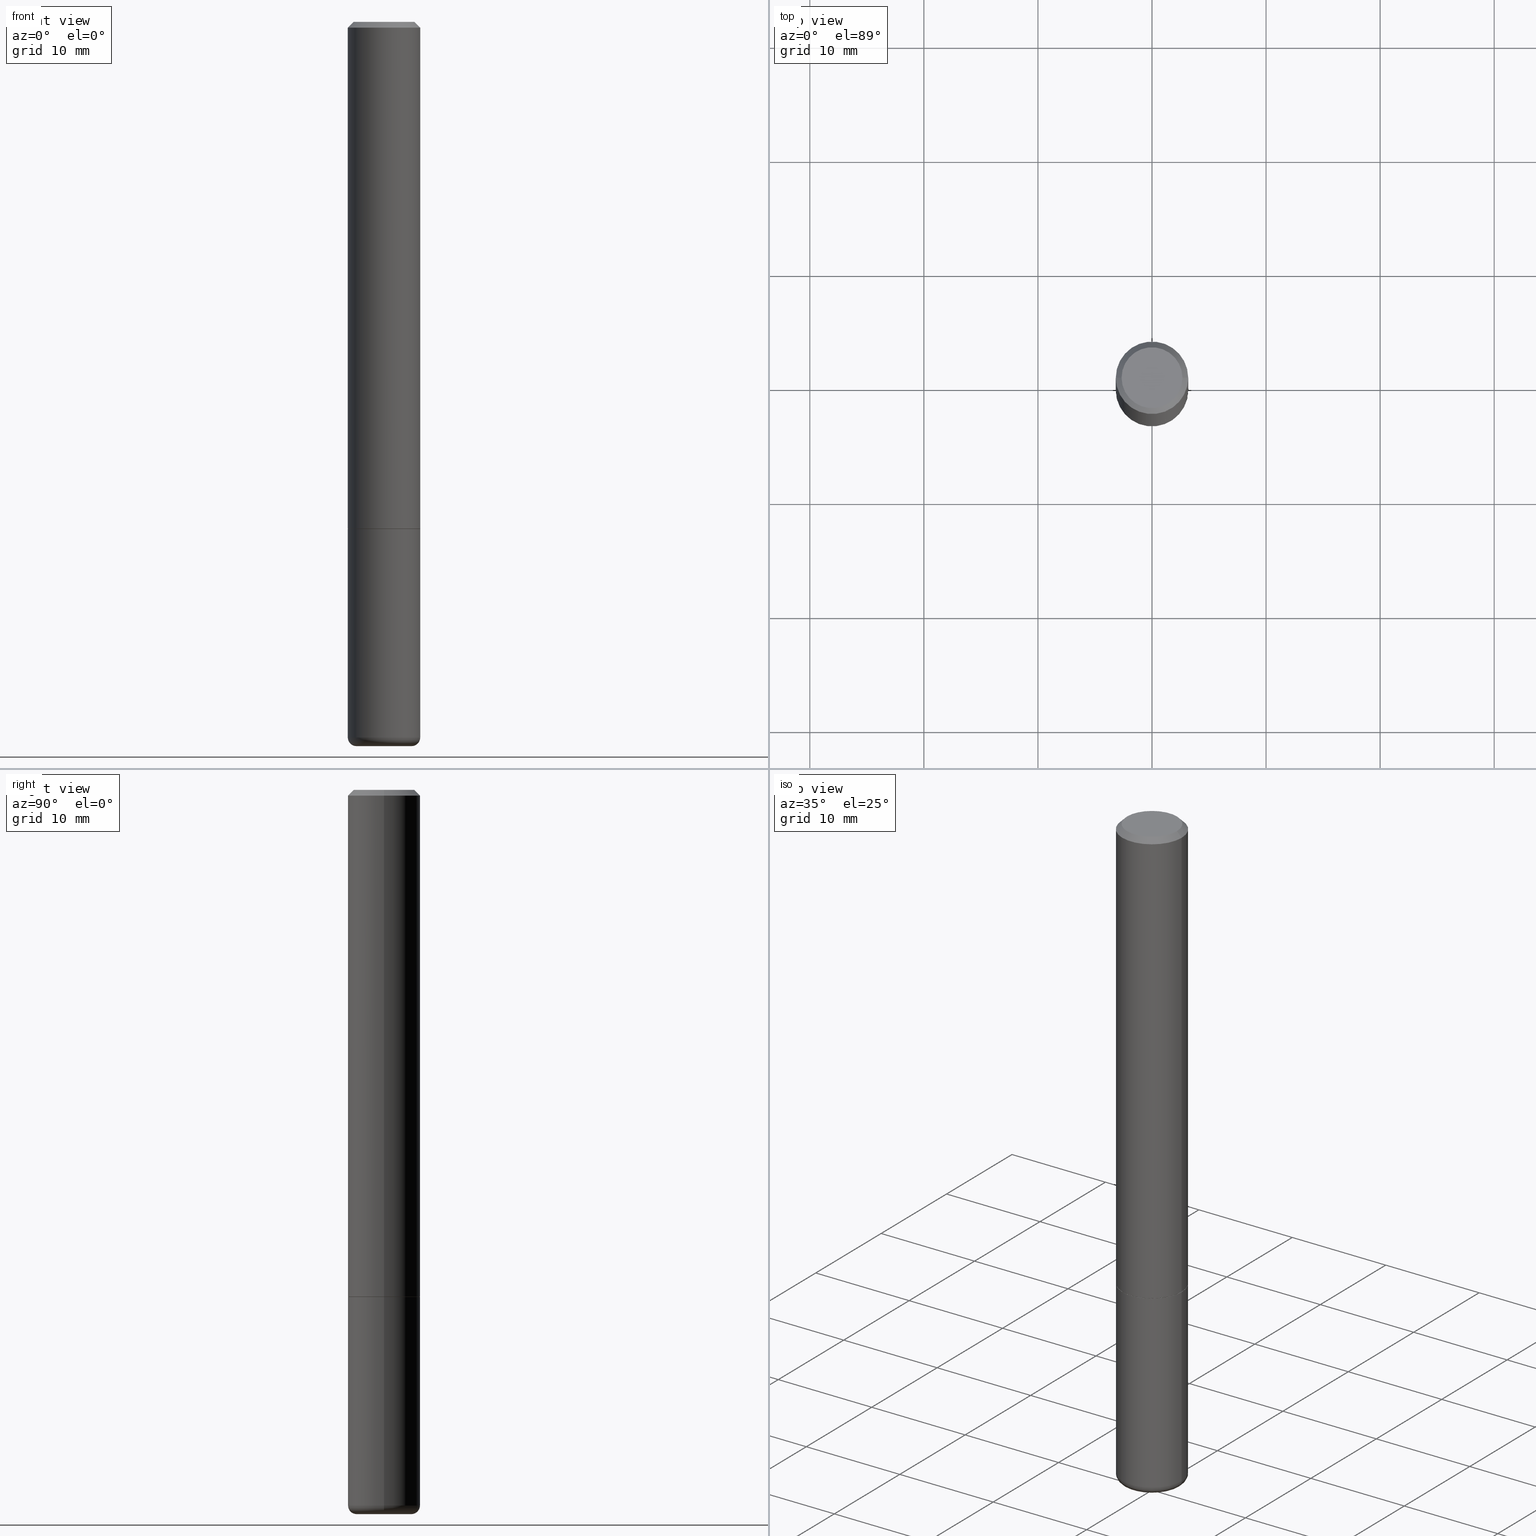
[diagram: canonical four-view strip — front | top / right | iso, engineering-drawing reading convention]
A machine part, canonical four-view strip (front | top / right | iso — engineering-drawing reading convention). The complete STEP part file that produces these views, byte-faithful:
ISO-10303-21;
HEADER;
FILE_DESCRIPTION (( 'STEP AP203' ),
    '1' );
FILE_NAME ('77123.STEP',
    '2024-03-06T16:04:13',
    ( '' ),
    ( '' ),
    'SwSTEP 2.0',
    'SolidWorks 2023',
    '' );
FILE_SCHEMA (( 'CONFIG_CONTROL_DESIGN' ));
ENDSEC;

DATA;
#1 = EDGE_CURVE ( 'NONE', #315, #45, #4, .T. ) ;
#2 = CARTESIAN_POINT ( 'NONE',  ( 4.279570410823989044E-29, -6.110092342975505460E-15, -1.750000000000000222 ) ) ;
#3 = FACE_OUTER_BOUND ( 'NONE', #313, .T. ) ;
#4 = CIRCLE ( 'NONE', #129, 0.1250000000000000000 ) ;
#5 = EDGE_CURVE ( 'NONE', #107, #174, #170, .T. ) ;
#6 = DIRECTION ( 'NONE',  ( -2.445468806185136597E-29, 3.491481338843145583E-15, 1.000000000000000000 ) ) ;
#7 = COORDINATED_UNIVERSAL_TIME_OFFSET ( 5, 0, .BEHIND. ) ;
#8 = LINE ( 'NONE', #35, #156 ) ;
#9 = DIRECTION ( 'NONE',  ( 1.000000000000000000, -6.982962677686267499E-15, 4.876176775795936353E-29 ) ) ;
#10 = CARTESIAN_POINT ( 'NONE',  ( -0.1249999999999999584, 8.030407079339200406E-16, -0.02000000000000006287 ) ) ;
#11 = CLOSED_SHELL ( 'NONE', ( #326, #207, #175, #405, #395, #160 ) ) ;
#12 = CIRCLE ( 'NONE', #255, 0.1250000000000001943 ) ;
#13 = DIRECTION ( 'NONE',  ( 2.438088387897960049E-29, -3.491481338843145188E-15, -1.000000000000000000 ) ) ;
#14 = CARTESIAN_POINT ( 'NONE',  ( 6.040307951277287977E-29, -8.623958906942569995E-15, -2.470000000000000195 ) ) ;
#15 = CARTESIAN_POINT ( 'NONE',  ( 1.252621697202263706E-45, -1.788411804456536750E-31, -5.122214988120493535E-17 ) ) ;
#16 = CARTESIAN_POINT ( 'NONE',  ( 4.279570410823989044E-29, -6.110092342975505460E-15, -1.750000000000000222 ) ) ;
#17 = DIRECTION ( 'NONE',  ( -2.445468806185136597E-29, 3.491481338843145583E-15, 1.000000000000000000 ) ) ;
#18 = EDGE_CURVE ( 'NONE', #108, #75, #74, .T. ) ;
#19 = ORIENTED_EDGE ( 'NONE', *, *, #380, .T. ) ;
#20 = ORIENTED_EDGE ( 'NONE', *, *, #55, .F. ) ;
#21 = DATE_AND_TIME ( #73, #287 ) ;
#22 = EDGE_LOOP ( 'NONE', ( #80, #275, #367, #375 ) ) ;
#23 = CARTESIAN_POINT ( 'NONE',  ( -0.1250000000000000000, -6.478847205258913284E-15, -1.750000000000000222 ) ) ;
#24 = EDGE_LOOP ( 'NONE', ( #366, #342, #114, #339 ) ) ;
#25 = ADVANCED_FACE ( 'NONE', ( #140 ), #168, .T. ) ;
#26 = CIRCLE ( 'NONE', #231, 0.02999999999999997113 ) ;
#27 = CIRCLE ( 'NONE', #344, 0.1050000000000000377 ) ;
#28 = PLANE ( 'NONE',  #273 ) ;
#29 = LINE ( 'NONE', #354, #200 ) ;
#30 = PERSON_AND_ORGANIZATION ( #100, #418 ) ;
#31 = CIRCLE ( 'NONE', #155, 0.1239999999999999991 ) ;
#32 = DATE_AND_TIME ( #289, #296 ) ;
#33 = APPROVAL_ROLE ( '' ) ;
#34 = AXIS2_PLACEMENT_3D ( 'NONE', #14, #105, #401 ) ;
#35 = CARTESIAN_POINT ( 'NONE',  ( 0.1249999999999999584, -9.273918764983043491E-16, -0.02000000000000006287 ) ) ;
#36 = FACE_OUTER_BOUND ( 'NONE', #24, .T. ) ;
#37 = APPROVAL_ROLE ( '' ) ;
#38 = AXIS2_PLACEMENT_3D ( 'NONE', #270, #307, #402 ) ;
#39 = DIRECTION ( 'NONE',  ( 1.000000000000000000, -6.982962677686262766E-15, 0.000000000000000000 ) ) ;
#40 = AXIS2_PLACEMENT_3D ( 'NONE', #281, #118, #248 ) ;
#41 = FACE_OUTER_BOUND ( 'NONE', #243, .T. ) ;
#42 = DIRECTION ( 'NONE',  ( -2.445468806185136597E-29, 3.491481338843145583E-15, 1.000000000000000000 ) ) ;
#43 = EDGE_LOOP ( 'NONE', ( #173, #146, #317, #372 ) ) ;
#44 = VERTEX_POINT ( 'NONE', #269 ) ;
#45 = VERTEX_POINT ( 'NONE', #23 ) ;
#46 = DATE_AND_TIME ( #83, #240 ) ;
#47 = VERTEX_POINT ( 'NONE', #202 ) ;
#48 = FACE_OUTER_BOUND ( 'NONE', #332, .T. ) ;
#49 = CIRCLE ( 'NONE', #364, 0.1250000000000000000 ) ;
#50 = SECURITY_CLASSIFICATION ( '', '', #136 ) ;
#51 = ORIENTED_EDGE ( 'NONE', *, *, #133, .F. ) ;
#52 = EDGE_LOOP ( 'NONE', ( #148, #271, #242, #397 ) ) ;
#53 = DIRECTION ( 'NONE',  ( 2.445468806185136597E-29, -3.491481338843145583E-15, -1.000000000000000000 ) ) ;
#54 = DIRECTION ( 'NONE',  ( -2.445468806185136597E-29, 3.491481338843145583E-15, 1.000000000000000000 ) ) ;
#55 = EDGE_CURVE ( 'NONE', #44, #107, #31, .T. ) ;
#56 = EDGE_LOOP ( 'NONE', ( #84, #51 ) ) ;
#57 = LINE ( 'NONE', #211, #413 ) ;
#58 = AXIS2_PLACEMENT_3D ( 'NONE', #226, #64, #195 ) ;
#59 = APPROVAL_PERSON_ORGANIZATION ( #125, #117, #370 ) ;
#60 = EDGE_CURVE ( 'NONE', #174, #368, #29, .T. ) ;
#61 = DIRECTION ( 'NONE',  ( 1.000000000000000000, -6.982962677686262766E-15, 0.000000000000000000 ) ) ;
#62 = CC_DESIGN_PERSON_AND_ORGANIZATION_ASSIGNMENT ( #293, #191, ( #119 ) ) ;
#63 = AXIS2_PLACEMENT_3D ( 'NONE', #16, #171, #272 ) ;
#64 = DIRECTION ( 'NONE',  ( -2.445468806185136597E-29, 3.491481338843145583E-15, 1.000000000000000000 ) ) ;
#65 = PERSON_AND_ORGANIZATION ( #100, #418 ) ;
#66 = LINE ( 'NONE', #162, #106 ) ;
#67 = DIRECTION ( 'NONE',  ( -2.445468806185136597E-29, 3.491481338843145583E-15, 1.000000000000000000 ) ) ;
#68 = AXIS2_PLACEMENT_3D ( 'NONE', #347, #54, #180 ) ;
#69 = CONICAL_SURFACE ( 'NONE', #193, 0.1249999999999999584, 0.7853981633974460586 ) ;
#70 = DIRECTION ( 'NONE',  ( -2.445468806185136597E-29, 3.491481338843145583E-15, 1.000000000000000000 ) ) ;
#71 = DIRECTION ( 'NONE',  ( 1.000000000000000000, -6.982962677686267499E-15, 0.000000000000000000 ) ) ;
#72 = CARTESIAN_POINT ( 'NONE',  ( 6.040307951277287977E-29, -8.623958906942569995E-15, -2.470000000000000195 ) ) ;
#73 = CALENDAR_DATE ( 2024, 6, 3 ) ;
#74 = CIRCLE ( 'NONE', #34, 0.1250000000000000000 ) ;
#75 = VERTEX_POINT ( 'NONE', #378 ) ;
#76 = VERTEX_POINT ( 'NONE', #221 ) ;
#77 = AXIS2_PLACEMENT_3D ( 'NONE', #294, #233, #71 ) ;
#78 = CYLINDRICAL_SURFACE ( 'NONE', #260, 0.1250000000000000555 ) ;
#79 = ADVANCED_FACE ( 'NONE', ( #323 ), #28, .F. ) ;
#80 = ORIENTED_EDGE ( 'NONE', *, *, #308, .F. ) ;
#81 = DIRECTION ( 'NONE',  ( 1.000000000000000000, -6.982962677686267499E-15, 0.000000000000000000 ) ) ;
#82 = CC_DESIGN_PERSON_AND_ORGANIZATION_ASSIGNMENT ( #230, #324, ( #337 ) ) ;
#83 = CALENDAR_DATE ( 2024, 6, 3 ) ;
#84 = ORIENTED_EDGE ( 'NONE', *, *, #241, .F. ) ;
#85 = CARTESIAN_POINT ( 'NONE',  ( 4.890937612370288923E-31, -6.982962677686312563E-17, -0.02000000000000006287 ) ) ;
#86 =( NAMED_UNIT ( * ) PLANE_ANGLE_UNIT ( ) SI_UNIT ( $, .RADIAN. ) );
#87 = DIRECTION ( 'NONE',  ( -2.445468806185136597E-29, 3.491481338843145583E-15, 1.000000000000000000 ) ) ;
#88 = ORIENTED_EDGE ( 'NONE', *, *, #215, .T. ) ;
#89 = AXIS2_PLACEMENT_3D ( 'NONE', #217, #95, #283 ) ;
#90 =( NAMED_UNIT ( * ) SI_UNIT ( $, .STERADIAN. ) SOLID_ANGLE_UNIT ( ) );
#91 = CC_DESIGN_DATE_AND_TIME_ASSIGNMENT ( #186, #183, ( #50 ) ) ;
#92 = PRODUCT_DEFINITION_SHAPE ( 'NONE', 'NONE',  #337 ) ;
#93 = DIRECTION ( 'NONE',  ( -2.438088387897960049E-29, 3.491481338843145188E-15, 1.000000000000000000 ) ) ;
#94 = AXIS2_PLACEMENT_3D ( 'NONE', #336, #361, #363 ) ;
#95 = DIRECTION ( 'NONE',  ( 7.105427357601001859E-15, 1.000000000000000000, -3.491481338843145583E-15 ) ) ;
#96 = AXIS2_PLACEMENT_3D ( 'NONE', #141, #178, #306 ) ;
#97 = DIRECTION ( 'NONE',  ( 0.7071067811865459074, -7.319954787623249734E-15, -0.7071067811865491270 ) ) ;
#98 = FACE_OUTER_BOUND ( 'NONE', #279, .T. ) ;
#99 = DIRECTION ( 'NONE',  ( 1.000000000000000000, -6.982962677686273021E-15, 0.000000000000000000 ) ) ;
#100 = PERSON ( 'UNSPECIFIED', 'UNSPECIFIED', 'UNSPECIFIED', ('UNSPECIFIED'), ('UNSPECIFIED'), ('UNSPECIFIED') ) ;
#101 = APPROVAL_PERSON_ORGANIZATION ( #194, #158, #33 ) ;
#102 = FACE_OUTER_BOUND ( 'NONE', #144, .T. ) ;
#103 = VERTEX_POINT ( 'NONE', #188 ) ;
#104 = DIRECTION ( 'NONE',  ( 1.000000000000000000, -6.982962677686266711E-15, 4.876176775795935793E-29 ) ) ;
#105 = DIRECTION ( 'NONE',  ( -2.445468806185136597E-29, 3.491481338843145583E-15, 1.000000000000000000 ) ) ;
#106 = VECTOR ( 'NONE', #223, 39.37007874015748143 ) ;
#107 = VERTEX_POINT ( 'NONE', #154 ) ;
#108 = VERTEX_POINT ( 'NONE', #383 ) ;
#109 = CC_DESIGN_APPROVAL ( #117, ( #50 ) ) ;
#110 = FACE_OUTER_BOUND ( 'NONE', #305, .T. ) ;
#111 = APPLICATION_CONTEXT ( 'configuration controlled 3d designs of mechanical parts and assemblies' ) ;
#112 = ORIENTED_EDGE ( 'NONE', *, *, #124, .F. ) ;
#113 = ORIENTED_EDGE ( 'NONE', *, *, #314, .F. ) ;
#114 = ORIENTED_EDGE ( 'NONE', *, *, #1, .F. ) ;
#115 = DIRECTION ( 'NONE',  ( 1.000000000000000000, -6.982962677686267499E-15, 4.874400871621236533E-29 ) ) ;
#116 = EDGE_CURVE ( 'NONE', #362, #108, #267, .T. ) ;
#117 = APPROVAL ( #147, 'UNSPECIFIED' ) ;
#118 = DIRECTION ( 'NONE',  ( 0.000000000000000000, 0.000000000000000000, 1.000000000000000000 ) ) ;
#119 = PRODUCT ( '77123', '77123', '', ( #245 ) ) ;
#120 = ORIENTED_EDGE ( 'NONE', *, *, #384, .T. ) ;
#121 = CARTESIAN_POINT ( 'NONE',  ( -0.1249999999999999584, 8.030407079339200406E-16, -0.02000000000000006287 ) ) ;
#122 = DIRECTION ( 'NONE',  ( -2.445468806185136597E-29, 3.491481338843145583E-15, 1.000000000000000000 ) ) ;
#123 = LINE ( 'NONE', #320, #161 ) ;
#124 = EDGE_CURVE ( 'NONE', #47, #75, #26, .T. ) ;
#125 = PERSON_AND_ORGANIZATION ( #100, #418 ) ;
#126 = CONICAL_SURFACE ( 'NONE', #359, 0.1239999999999999991, 0.7853981633976446775 ) ;
#127 = DIRECTION ( 'NONE',  ( -2.445468806185136597E-29, 3.491481338843145583E-15, 1.000000000000000000 ) ) ;
#128 = COORDINATED_UNIVERSAL_TIME_OFFSET ( 5, 0, .BEHIND. ) ;
#129 = AXIS2_PLACEMENT_3D ( 'NONE', #199, #17, #39 ) ;
#130 = CC_DESIGN_SECURITY_CLASSIFICATION ( #50, ( #355 ) ) ;
#131 = DIRECTION ( 'NONE',  ( 1.000000000000000000, -6.982962677686267499E-15, 4.874400871621236533E-29 ) ) ;
#132 = CALENDAR_DATE ( 2024, 6, 3 ) ;
#133 = EDGE_CURVE ( 'NONE', #362, #47, #238, .T. ) ;
#134 = DIRECTION ( 'NONE',  ( -0.7071067811865459074, 2.468850131082240100E-15, -0.7071067811865491270 ) ) ;
#135 = AXIS2_PLACEMENT_3D ( 'NONE', #85, #177, #236 ) ;
#136 = SECURITY_CLASSIFICATION_LEVEL ( 'unclassified' ) ;
#137 = ORIENTED_EDGE ( 'NONE', *, *, #227, .F. ) ;
#138 = FACE_OUTER_BOUND ( 'NONE', #251, .T. ) ;
#139 = ORIENTED_EDGE ( 'NONE', *, *, #60, .F. ) ;
#140 = FACE_OUTER_BOUND ( 'NONE', #22, .T. ) ;
#141 = CARTESIAN_POINT ( 'NONE',  ( 6.040307951277287977E-29, -8.623958906942569995E-15, -2.470000000000000195 ) ) ;
#142 = PLANE ( 'NONE',  #224 ) ;
#143 = ORIENTED_EDGE ( 'NONE', *, *, #190, .F. ) ;
#144 = EDGE_LOOP ( 'NONE', ( #398, #235, #113, #201 ) ) ;
#145 = PLANE ( 'NONE',  #38 ) ;
#146 = ORIENTED_EDGE ( 'NONE', *, *, #308, .T. ) ;
#147 = APPROVAL_STATUS ( 'not_yet_approved' ) ;
#148 = ORIENTED_EDGE ( 'NONE', *, *, #5, .F. ) ;
#149 = DIRECTION ( 'NONE',  ( -1.000000000000000000, 6.982962677686267499E-15, 0.000000000000000000 ) ) ;
#150 = CLOSED_SHELL ( 'NONE', ( #153, #416, #343, #25, #356, #285, #79, #222 ) ) ;
#151 = APPROVAL_PERSON_ORGANIZATION ( #159, #286, #37 ) ;
#152 = DIRECTION ( 'NONE',  ( -2.445468806185136597E-29, 3.491481338843145583E-15, 1.000000000000000000 ) ) ;
#153 = ADVANCED_FACE ( 'NONE', ( #102 ), #391, .T. ) ;
#154 = CARTESIAN_POINT ( 'NONE',  ( -0.1239999999999999991, -5.223720896284758045E-15, -1.750000000000000000 ) ) ;
#155 = AXIS2_PLACEMENT_3D ( 'NONE', #319, #122, #414 ) ;
#156 = VECTOR ( 'NONE', #97, 39.37007874015748143 ) ;
#157 = EDGE_CURVE ( 'NONE', #45, #315, #412, .T. ) ;
#158 = APPROVAL ( #298, 'UNSPECIFIED' ) ;
#159 = PERSON_AND_ORGANIZATION ( #100, #418 ) ;
#160 = ADVANCED_FACE ( 'NONE', ( #167 ), #142, .T. ) ;
#162 = CARTESIAN_POINT ( 'NONE',  ( 0.1250000000000000000, -8.728703347107833388E-16, 6.095220969744919741E-30 ) ) ;
#161 = VECTOR ( 'NONE', #379, 39.37007874015748143 ) ;
#163 = CC_DESIGN_PERSON_AND_ORGANIZATION_ASSIGNMENT ( #321, #348, ( #50 ) ) ;
#164 = DIRECTION ( 'NONE',  ( -2.445468806185136597E-29, 3.491481338843145583E-15, 1.000000000000000000 ) ) ;
#165 = DIRECTION ( 'NONE',  ( -2.445468806185136597E-29, 3.491481338843145583E-15, 1.000000000000000000 ) ) ;
#166 = CARTESIAN_POINT ( 'NONE',  ( 4.279570410823988484E-29, -6.110092342975504671E-15, -1.750000000000000000 ) ) ;
#167 = FACE_OUTER_BOUND ( 'NONE', #56, .T. ) ;
#168 = CONICAL_SURFACE ( 'NONE', #135, 0.1249999999999999584, 0.7853981633974460586 ) ;
#169 = CIRCLE ( 'NONE', #77, 0.1250000000000001943 ) ;
#170 = LINE ( 'NONE', #280, #386 ) ;
#171 = DIRECTION ( 'NONE',  ( -2.445468806185136597E-29, 3.491481338843145583E-15, 1.000000000000000000 ) ) ;
#172 = ORIENTED_EDGE ( 'NONE', *, *, #116, .F. ) ;
#173 = ORIENTED_EDGE ( 'NONE', *, *, #299, .F. ) ;
#174 = VERTEX_POINT ( 'NONE', #237 ) ;
#175 = ADVANCED_FACE ( 'NONE', ( #138 ), #145, .F. ) ;
#176 = TOROIDAL_SURFACE ( 'NONE', #96, 0.09499999999999998723, 0.02999999999999997807 ) ;
#177 = DIRECTION ( 'NONE',  ( 2.445468806185136597E-29, -3.491481338843145583E-15, -1.000000000000000000 ) ) ;
#178 = DIRECTION ( 'NONE',  ( -2.445468806185136597E-29, 3.491481338843145583E-15, 1.000000000000000000 ) ) ;
#179 = VERTEX_POINT ( 'NONE', #390 ) ;
#180 = DIRECTION ( 'NONE',  ( 1.000000000000000000, -6.982962677686267499E-15, 0.000000000000000000 ) ) ;
#181 = DIRECTION ( 'NONE',  ( 2.438088387897960049E-29, -3.491481338843145188E-15, -1.000000000000000000 ) ) ;
#182 = DIRECTION ( 'NONE',  ( 0.7071067811866863506, -2.468850131083710931E-15, 0.7071067811864086838 ) ) ;
#183 = DATE_TIME_ROLE ( 'classification_date' ) ;
#184 = CARTESIAN_POINT ( 'NONE',  ( 4.277124942017804562E-29, -6.106600861636661664E-15, -1.749000000000000110 ) ) ;
#185 = TOROIDAL_SURFACE ( 'NONE', #58, 0.09499999999999998723, 0.02999999999999997807 ) ;
#186 = DATE_AND_TIME ( #216, #311 ) ;
#187 = DIRECTION ( 'NONE',  ( -1.000000000000000000, 6.982962677686265922E-15, -4.876176775795935793E-29 ) ) ;
#188 = CARTESIAN_POINT ( 'NONE',  ( 0.1250000000000001943, -6.979471196347446580E-15, -1.749000000000000110 ) ) ;
#189 = DIRECTION ( 'NONE',  ( -2.445468806185136877E-29, 3.491481338843145188E-15, 1.000000000000000000 ) ) ;
#190 = EDGE_CURVE ( 'NONE', #75, #108, #49, .T. ) ;
#191 = PERSON_AND_ORGANIZATION_ROLE ( 'design_owner' ) ;
#192 = CIRCLE ( 'NONE', #295, 0.1239999999999999991 ) ;
#193 = AXIS2_PLACEMENT_3D ( 'NONE', #376, #53, #149 ) ;
#194 = PERSON_AND_ORGANIZATION ( #100, #418 ) ;
#195 = DIRECTION ( 'NONE',  ( 1.000000000000000000, -6.982962677686273021E-15, 4.883557194083114583E-29 ) ) ;
#196 = EDGE_CURVE ( 'NONE', #76, #368, #301, .T. ) ;
#197 = CIRCLE ( 'NONE', #68, 0.1249999999999999584 ) ;
#198 = CARTESIAN_POINT ( 'NONE',  ( 0.000000000000000000, 0.000000000000000000, 0.000000000000000000 ) ) ;
#199 = CARTESIAN_POINT ( 'NONE',  ( 4.279570410823989044E-29, -6.110092342975505460E-15, -1.750000000000000222 ) ) ;
#200 = VECTOR ( 'NONE', #189, 39.37007874015748143 ) ;
#201 = ORIENTED_EDGE ( 'NONE', *, *, #334, .F. ) ;
#202 = CARTESIAN_POINT ( 'NONE',  ( 0.09499999999999998723, -9.392084801488059965E-15, -2.500000000000000000 ) ) ;
#203 = ORIENTED_EDGE ( 'NONE', *, *, #314, .T. ) ;
#204 = EDGE_LOOP ( 'NONE', ( #20, #137 ) ) ;
#205 = CYLINDRICAL_SURFACE ( 'NONE', #404, 0.1250000000000000000 ) ;
#206 = CARTESIAN_POINT ( 'NONE',  ( 6.113672015462842613E-29, -8.728703347107864943E-15, -2.500000000000000000 ) ) ;
#207 = ADVANCED_FACE ( 'NONE', ( #3 ), #185, .T. ) ;
#208 = ORIENTED_EDGE ( 'NONE', *, *, #299, .T. ) ;
#209 =( CONVERSION_BASED_UNIT ( 'INCH', #219 ) LENGTH_UNIT ( ) NAMED_UNIT ( #292 ) );
#210 = VECTOR ( 'NONE', #388, 39.37007874015748143 ) ;
#211 = CARTESIAN_POINT ( 'NONE',  ( 0.1239999999999999991, -6.975979715008601207E-15, -1.750000000000000000 ) ) ;
#212 = DIRECTION ( 'NONE',  ( 1.000000000000000000, -6.982962677686267499E-15, 0.000000000000000000 ) ) ;
#213 = MANIFOLD_SOLID_BREP ( 'Body-Move/Copy2[1]', #11 ) ;
#214 = APPROVAL_DATE_TIME ( #21, #286 ) ;
#215 = EDGE_CURVE ( 'NONE', #103, #179, #327, .T. ) ;
#216 = CALENDAR_DATE ( 2024, 6, 3 ) ;
#217 = CARTESIAN_POINT ( 'NONE',  ( -0.09499999999999998723, -7.948943307970475008E-15, -2.470000000000000195 ) ) ;
#218 = CYLINDRICAL_SURFACE ( 'NONE', #250, 0.1250000000000000555 ) ;
#219 = LENGTH_MEASURE_WITH_UNIT ( LENGTH_MEASURE( 0.02539999999999999897 ), #302 );
#220 = DIRECTION ( 'NONE',  ( 1.000000000000000000, -6.982962677686265922E-15, 4.876176775795935793E-29 ) ) ;
#221 = CARTESIAN_POINT ( 'NONE',  ( -0.1050000000000000377, 7.681258945454890818E-16, -5.122214988121018004E-17 ) ) ;
#222 = ADVANCED_FACE ( 'NONE', ( #98 ), #229, .F. ) ;
#223 = DIRECTION ( 'NONE',  ( -2.445468806185136877E-29, 3.491481338843145188E-15, 1.000000000000000000 ) ) ;
#224 = AXIS2_PLACEMENT_3D ( 'NONE', #309, #13, #399 ) ;
#225 = AXIS2_PLACEMENT_3D ( 'NONE', #385, #87, #104 ) ;
#226 = CARTESIAN_POINT ( 'NONE',  ( 6.040307951277287977E-29, -8.623958906942569995E-15, -2.470000000000000195 ) ) ;
#227 = EDGE_CURVE ( 'NONE', #107, #44, #192, .T. ) ;
#228 = DIRECTION ( 'NONE',  ( -6.982962677686266711E-15, -1.000000000000000000, 3.491481338843145583E-15 ) ) ;
#229 = PLANE ( 'NONE',  #328 ) ;
#230 = PERSON_AND_ORGANIZATION ( #100, #418 ) ;
#231 = AXIS2_PLACEMENT_3D ( 'NONE', #263, #228, #338 ) ;
#232 = CC_DESIGN_APPROVAL ( #158, ( #337 ) ) ;
#233 = DIRECTION ( 'NONE',  ( -2.445468806185136597E-29, 3.491481338843145583E-15, 1.000000000000000000 ) ) ;
#234 = EDGE_CURVE ( 'NONE', #75, #315, #66, .T. ) ;
#235 = ORIENTED_EDGE ( 'NONE', *, *, #5, .T. ) ;
#236 = DIRECTION ( 'NONE',  ( -1.000000000000000000, 6.982962677686267499E-15, 0.000000000000000000 ) ) ;
#237 = CARTESIAN_POINT ( 'NONE',  ( -0.1250000000000001943, -2.200036824506633304E-15, -1.749000000000000110 ) ) ;
#238 = CIRCLE ( 'NONE', #374, 0.09499999999999998723 ) ;
#239 = COORDINATED_UNIVERSAL_TIME_OFFSET ( 5, 0, .BEHIND. ) ;
#240 = LOCAL_TIME ( 11, 4, 13.00000000000000000, #253 ) ;
#241 = EDGE_CURVE ( 'NONE', #47, #362, #249, .T. ) ;
#242 = ORIENTED_EDGE ( 'NONE', *, *, #334, .T. ) ;
#243 = EDGE_LOOP ( 'NONE', ( #203, #400, #340, #365 ) ) ;
#244 = ORIENTED_EDGE ( 'NONE', *, *, #133, .T. ) ;
#245 = MECHANICAL_CONTEXT ( 'NONE', #381, 'mechanical' ) ;
#246 = ORIENTED_EDGE ( 'NONE', *, *, #18, .F. ) ;
#247 = ORIENTED_EDGE ( 'NONE', *, *, #157, .F. ) ;
#248 = DIRECTION ( 'NONE',  ( 1.000000000000000000, 0.000000000000000000, 0.000000000000000000 ) ) ;
#249 = CIRCLE ( 'NONE', #352, 0.09499999999999998723 ) ;
#250 = AXIS2_PLACEMENT_3D ( 'NONE', #346, #288, #415 ) ;
#251 = EDGE_LOOP ( 'NONE', ( #407, #408 ) ) ;
#252 = PRODUCT_RELATED_PRODUCT_CATEGORY ( 'detail', '', ( #119 ) ) ;
#253 = COORDINATED_UNIVERSAL_TIME_OFFSET ( 5, 0, .BEHIND. ) ;
#254 = EDGE_CURVE ( 'NONE', #179, #368, #403, .T. ) ;
#255 = AXIS2_PLACEMENT_3D ( 'NONE', #184, #152, #81 ) ;
#256 = CC_DESIGN_PERSON_AND_ORGANIZATION_ASSIGNMENT ( #65, #303, ( #355 ) ) ;
#257 = DATE_TIME_ROLE ( 'creation_date' ) ;
#258 = CYLINDRICAL_SURFACE ( 'NONE', #225, 0.1250000000000000000 ) ;
#259 = CARTESIAN_POINT ( 'NONE',  ( 0.1250000000000000555, -8.728703347107838319E-16, 6.095220969744923244E-30 ) ) ;
#260 = AXIS2_PLACEMENT_3D ( 'NONE', #198, #165, #9 ) ;
#261 = DATE_AND_TIME ( #132, #392 ) ;
#262 = PERSON_AND_ORGANIZATION_ROLE ( 'creator' ) ;
#263 = CARTESIAN_POINT ( 'NONE',  ( 0.09499999999999998723, -9.287340361322766595E-15, -2.470000000000000195 ) ) ;
#264 = EDGE_CURVE ( 'NONE', #368, #179, #197, .T. ) ;
#265 = DIRECTION ( 'NONE',  ( 1.000000000000000000, -6.982962677686262766E-15, 0.000000000000000000 ) ) ;
#266 = DIRECTION ( 'NONE',  ( 1.000000000000000000, -6.982962677686270655E-15, 0.000000000000000000 ) ) ;
#267 = CIRCLE ( 'NONE', #89, 0.02999999999999997113 ) ;
#268 = ORIENTED_EDGE ( 'NONE', *, *, #124, .T. ) ;
#269 = CARTESIAN_POINT ( 'NONE',  ( 0.1239999999999999991, -6.975979715008601207E-15, -1.750000000000000000 ) ) ;
#270 = CARTESIAN_POINT ( 'NONE',  ( 4.279570410823989044E-29, -6.110092342975505460E-15, -1.750000000000000222 ) ) ;
#271 = ORIENTED_EDGE ( 'NONE', *, *, #227, .T. ) ;
#272 = DIRECTION ( 'NONE',  ( 1.000000000000000000, -6.982962677686262766E-15, 0.000000000000000000 ) ) ;
#273 = AXIS2_PLACEMENT_3D ( 'NONE', #2, #93, #220 ) ;
#274 =( GEOMETRIC_REPRESENTATION_CONTEXT ( 3 ) GLOBAL_UNCERTAINTY_ASSIGNED_CONTEXT ( ( #329 ) ) GLOBAL_UNIT_ASSIGNED_CONTEXT ( ( #209, #86, #90 ) ) REPRESENTATION_CONTEXT ( 'NONE', 'WORKASPACE' ) );
#275 = ORIENTED_EDGE ( 'NONE', *, *, #384, .F. ) ;
#276 = ORIENTED_EDGE ( 'NONE', *, *, #241, .T. ) ;
#277 = ADVANCED_BREP_SHAPE_REPRESENTATION ( '77123', ( #213, #358, #40 ), #274 ) ;
#278 = SHAPE_DEFINITION_REPRESENTATION ( #92, #277 ) ;
#279 = EDGE_LOOP ( 'NONE', ( #120, #208 ) ) ;
#280 = CARTESIAN_POINT ( 'NONE',  ( -0.1239999999999999991, -5.229019350632980447E-15, -1.750000000000000000 ) ) ;
#281 = CARTESIAN_POINT ( 'NONE',  ( 0.000000000000000000, 0.000000000000000000, 0.000000000000000000 ) ) ;
#282 = EDGE_LOOP ( 'NONE', ( #139, #19, #88, #349 ) ) ;
#283 = DIRECTION ( 'NONE',  ( -1.000000000000000000, 7.105427357600997914E-15, 0.000000000000000000 ) ) ;
#284 = FACE_OUTER_BOUND ( 'NONE', #282, .T. ) ;
#285 = ADVANCED_FACE ( 'NONE', ( #291 ), #126, .T. ) ;
#286 = APPROVAL ( #290, 'UNSPECIFIED' ) ;
#287 = LOCAL_TIME ( 11, 4, 13.00000000000000000, #239 ) ;
#288 = DIRECTION ( 'NONE',  ( -2.445468806185136597E-29, 3.491481338843145583E-15, 1.000000000000000000 ) ) ;
#289 = CALENDAR_DATE ( 2024, 6, 3 ) ;
#290 = APPROVAL_STATUS ( 'not_yet_approved' ) ;
#291 = FACE_OUTER_BOUND ( 'NONE', #52, .T. ) ;
#292 = DIMENSIONAL_EXPONENTS ( 1.000000000000000000, 0.000000000000000000, 0.000000000000000000, 0.000000000000000000, 0.000000000000000000, 0.000000000000000000, 0.000000000000000000 ) ;
#293 = PERSON_AND_ORGANIZATION ( #100, #418 ) ;
#294 = CARTESIAN_POINT ( 'NONE',  ( 4.277124942017804562E-29, -6.106600861636661664E-15, -1.749000000000000110 ) ) ;
#295 = AXIS2_PLACEMENT_3D ( 'NONE', #316, #353, #61 ) ;
#296 = LOCAL_TIME ( 11, 4, 13.00000000000000000, #128 ) ;
#297 = CARTESIAN_POINT ( 'NONE',  ( 6.113672015462842613E-29, -8.728703347107864943E-15, -2.500000000000000000 ) ) ;
#298 = APPROVAL_STATUS ( 'not_yet_approved' ) ;
#299 = EDGE_CURVE ( 'NONE', #371, #76, #310, .T. ) ;
#300 = CC_DESIGN_DATE_AND_TIME_ASSIGNMENT ( #32, #257, ( #337 ) ) ;
#301 = LINE ( 'NONE', #10, #325 ) ;
#302 =( LENGTH_UNIT ( ) NAMED_UNIT ( * ) SI_UNIT ( $, .METRE. ) );
#303 = PERSON_AND_ORGANIZATION_ROLE ( 'design_supplier' ) ;
#304 = DIRECTION ( 'NONE',  ( -0.7071067811866863506, 7.493145998870855876E-15, 0.7071067811864086838 ) ) ;
#305 = EDGE_LOOP ( 'NONE', ( #406, #393, #409, #247 ) ) ;
#306 = DIRECTION ( 'NONE',  ( 1.000000000000000000, -6.982962677686273021E-15, 4.883557194083114583E-29 ) ) ;
#307 = DIRECTION ( 'NONE',  ( 2.438088387897960049E-29, -3.491481338843145188E-15, -1.000000000000000000 ) ) ;
#308 = EDGE_CURVE ( 'NONE', #371, #179, #8, .T. ) ;
#309 = CARTESIAN_POINT ( 'NONE',  ( 6.113672015462842613E-29, -8.728703347107864943E-15, -2.500000000000000000 ) ) ;
#310 = CIRCLE ( 'NONE', #417, 0.1050000000000000377 ) ;
#311 = LOCAL_TIME ( 11, 4, 13.00000000000000000, #377 ) ;
#312 = APPROVAL_DATE_TIME ( #46, #117 ) ;
#313 = EDGE_LOOP ( 'NONE', ( #276, #345, #143, #112 ) ) ;
#314 = EDGE_CURVE ( 'NONE', #103, #174, #169, .T. ) ;
#315 = VERTEX_POINT ( 'NONE', #330 ) ;
#316 = CARTESIAN_POINT ( 'NONE',  ( 4.279570410823988484E-29, -6.110092342975504671E-15, -1.750000000000000000 ) ) ;
#317 = ORIENTED_EDGE ( 'NONE', *, *, #254, .T. ) ;
#318 = APPLICATION_PROTOCOL_DEFINITION ( 'international standard', 'config_control_design', 1994, #381 ) ;
#319 = CARTESIAN_POINT ( 'NONE',  ( 4.279570410823988484E-29, -6.110092342975504671E-15, -1.750000000000000000 ) ) ;
#320 = CARTESIAN_POINT ( 'NONE',  ( -0.1250000000000000000, 8.881784197001252323E-16, -6.148668862818632227E-30 ) ) ;
#321 = PERSON_AND_ORGANIZATION ( #100, #418 ) ;
#322 = CARTESIAN_POINT ( 'NONE',  ( 4.890937612370288923E-31, -6.982962677686312563E-17, -0.02000000000000006287 ) ) ;
#323 = FACE_OUTER_BOUND ( 'NONE', #204, .T. ) ;
#324 = PERSON_AND_ORGANIZATION_ROLE ( 'creator' ) ;
#325 = VECTOR ( 'NONE', #134, 39.37007874015748143 ) ;
#326 = ADVANCED_FACE ( 'NONE', ( #36 ), #258, .T. ) ;
#327 = LINE ( 'NONE', #259, #210 ) ;
#328 = AXIS2_PLACEMENT_3D ( 'NONE', #357, #181, #187 ) ;
#329 = UNCERTAINTY_MEASURE_WITH_UNIT (LENGTH_MEASURE( 1.000000000000000082E-05 ), #209, 'distance_accuracy_value', 'NONE');
#330 = CARTESIAN_POINT ( 'NONE',  ( 0.1250000000000000000, -6.982962677686288010E-15, -1.750000000000000222 ) ) ;
#331 = DIRECTION ( 'NONE',  ( -2.445468806185136597E-29, 3.491481338843145583E-15, 1.000000000000000000 ) ) ;
#332 = EDGE_LOOP ( 'NONE', ( #172, #244, #268, #246 ) ) ;
#333 = CC_DESIGN_APPROVAL ( #286, ( #355 ) ) ;
#334 = EDGE_CURVE ( 'NONE', #44, #103, #57, .T. ) ;
#335 = DIRECTION ( 'NONE',  ( -2.445468806185136597E-29, 3.491481338843145583E-15, 1.000000000000000000 ) ) ;
#336 = CARTESIAN_POINT ( 'NONE',  ( 4.279570410823988484E-29, -6.110092342975504671E-15, -1.750000000000000000 ) ) ;
#337 = PRODUCT_DEFINITION ( 'UNKNOWN', '', #355, #411 ) ;
#338 = DIRECTION ( 'NONE',  ( 1.000000000000000000, -6.982962677686274599E-15, 0.000000000000000000 ) ) ;
#339 = ORIENTED_EDGE ( 'NONE', *, *, #234, .F. ) ;
#340 = ORIENTED_EDGE ( 'NONE', *, *, #254, .F. ) ;
#341 = DIRECTION ( 'NONE',  ( 1.000000000000000000, -6.982962677686273021E-15, 0.000000000000000000 ) ) ;
#342 = ORIENTED_EDGE ( 'NONE', *, *, #369, .T. ) ;
#343 = ADVANCED_FACE ( 'NONE', ( #350 ), #69, .T. ) ;
#344 = AXIS2_PLACEMENT_3D ( 'NONE', #15, #335, #115 ) ;
#345 = ORIENTED_EDGE ( 'NONE', *, *, #116, .T. ) ;
#346 = CARTESIAN_POINT ( 'NONE',  ( 0.000000000000000000, 0.000000000000000000, 0.000000000000000000 ) ) ;
#347 = CARTESIAN_POINT ( 'NONE',  ( 4.890937612370288923E-31, -6.982962677686312563E-17, -0.02000000000000006287 ) ) ;
#348 = PERSON_AND_ORGANIZATION_ROLE ( 'classification_officer' ) ;
#349 = ORIENTED_EDGE ( 'NONE', *, *, #264, .F. ) ;
#350 = FACE_OUTER_BOUND ( 'NONE', #43, .T. ) ;
#351 = CARTESIAN_POINT ( 'NONE',  ( 0.1050000000000000377, -8.238720831321576644E-16, -5.122214988119949344E-17 ) ) ;
#352 = AXIS2_PLACEMENT_3D ( 'NONE', #297, #6, #99 ) ;
#353 = DIRECTION ( 'NONE',  ( -2.445468806185136597E-29, 3.491481338843145583E-15, 1.000000000000000000 ) ) ;
#354 = CARTESIAN_POINT ( 'NONE',  ( -0.1250000000000000555, 8.881784197001256268E-16, -6.148668862818635730E-30 ) ) ;
#355 = PRODUCT_DEFINITION_FORMATION_WITH_SPECIFIED_SOURCE ( 'ANY', '', #119, .NOT_KNOWN. ) ;
#356 = ADVANCED_FACE ( 'NONE', ( #284 ), #218, .T. ) ;
#357 = CARTESIAN_POINT ( 'NONE',  ( 7.332110811570581229E-16, 0.1050000000000000377, -3.922166155191328542E-16 ) ) ;
#358 = MANIFOLD_SOLID_BREP ( 'Body-Move/Copy2[2]', #150 ) ;
#359 = AXIS2_PLACEMENT_3D ( 'NONE', #166, #164, #265 ) ;
#360 = CARTESIAN_POINT ( 'NONE',  ( 1.252621697202263706E-45, -1.788411804456536750E-31, -5.122214988120493535E-17 ) ) ;
#361 = DIRECTION ( 'NONE',  ( -2.445468806185136597E-29, 3.491481338843145583E-15, 1.000000000000000000 ) ) ;
#362 = VERTEX_POINT ( 'NONE', #410 ) ;
#363 = DIRECTION ( 'NONE',  ( 1.000000000000000000, -6.982962677686262766E-15, 0.000000000000000000 ) ) ;
#364 = AXIS2_PLACEMENT_3D ( 'NONE', #72, #70, #266 ) ;
#365 = ORIENTED_EDGE ( 'NONE', *, *, #215, .F. ) ;
#366 = ORIENTED_EDGE ( 'NONE', *, *, #190, .T. ) ;
#367 = ORIENTED_EDGE ( 'NONE', *, *, #196, .T. ) ;
#368 = VERTEX_POINT ( 'NONE', #121 ) ;
#369 = EDGE_CURVE ( 'NONE', #108, #45, #123, .T. ) ;
#370 = APPROVAL_ROLE ( '' ) ;
#371 = VERTEX_POINT ( 'NONE', #351 ) ;
#372 = ORIENTED_EDGE ( 'NONE', *, *, #196, .F. ) ;
#373 = CARTESIAN_POINT ( 'NONE',  ( 0.000000000000000000, 0.000000000000000000, 0.000000000000000000 ) ) ;
#374 = AXIS2_PLACEMENT_3D ( 'NONE', #206, #42, #341 ) ;
#375 = ORIENTED_EDGE ( 'NONE', *, *, #264, .T. ) ;
#376 = CARTESIAN_POINT ( 'NONE',  ( 4.890937612370288923E-31, -6.982962677686312563E-17, -0.02000000000000006287 ) ) ;
#377 = COORDINATED_UNIVERSAL_TIME_OFFSET ( 5, 0, .BEHIND. ) ;
#378 = CARTESIAN_POINT ( 'NONE',  ( 0.1249999999999999861, -9.496829241653354912E-15, -2.470000000000000195 ) ) ;
#379 = DIRECTION ( 'NONE',  ( -2.445468806185136877E-29, 3.491481338843145188E-15, 1.000000000000000000 ) ) ;
#380 = EDGE_CURVE ( 'NONE', #174, #103, #12, .T. ) ;
#381 = APPLICATION_CONTEXT ( 'configuration controlled 3d designs of mechanical parts and assemblies' ) ;
#382 = AXIS2_PLACEMENT_3D ( 'NONE', #322, #127, #212 ) ;
#383 = CARTESIAN_POINT ( 'NONE',  ( -0.1249999999999999861, -7.735780487242444763E-15, -2.470000000000000195 ) ) ;
#384 = EDGE_CURVE ( 'NONE', #76, #371, #27, .T. ) ;
#385 = CARTESIAN_POINT ( 'NONE',  ( 0.000000000000000000, 0.000000000000000000, 0.000000000000000000 ) ) ;
#386 = VECTOR ( 'NONE', #304, 39.37007874015748143 ) ;
#387 = APPLICATION_PROTOCOL_DEFINITION ( 'international standard', 'config_control_design', 1994, #111 ) ;
#388 = DIRECTION ( 'NONE',  ( -2.445468806185136877E-29, 3.491481338843145188E-15, 1.000000000000000000 ) ) ;
#389 = APPROVAL_DATE_TIME ( #261, #158 ) ;
#390 = CARTESIAN_POINT ( 'NONE',  ( 0.1249999999999999584, -9.273918764983043491E-16, -0.02000000000000006287 ) ) ;
#391 = CONICAL_SURFACE ( 'NONE', #94, 0.1239999999999999991, 0.7853981633976446775 ) ;
#392 = LOCAL_TIME ( 11, 4, 13.00000000000000000, #7 ) ;
#393 = ORIENTED_EDGE ( 'NONE', *, *, #18, .T. ) ;
#394 = DIRECTION ( 'NONE',  ( 1.000000000000000000, -6.982962677686266711E-15, 4.876176775795935793E-29 ) ) ;
#395 = ADVANCED_FACE ( 'NONE', ( #48 ), #176, .T. ) ;
#396 = CC_DESIGN_PERSON_AND_ORGANIZATION_ASSIGNMENT ( #30, #262, ( #355 ) ) ;
#397 = ORIENTED_EDGE ( 'NONE', *, *, #380, .F. ) ;
#398 = ORIENTED_EDGE ( 'NONE', *, *, #55, .T. ) ;
#399 = DIRECTION ( 'NONE',  ( -1.000000000000000000, 6.982962677686265922E-15, -4.876176775795935793E-29 ) ) ;
#400 = ORIENTED_EDGE ( 'NONE', *, *, #60, .T. ) ;
#401 = DIRECTION ( 'NONE',  ( 1.000000000000000000, -6.982962677686270655E-15, 0.000000000000000000 ) ) ;
#402 = DIRECTION ( 'NONE',  ( -1.000000000000000000, 6.982962677686265922E-15, -4.876176775795935793E-29 ) ) ;
#403 = CIRCLE ( 'NONE', #382, 0.1249999999999999584 ) ;
#404 = AXIS2_PLACEMENT_3D ( 'NONE', #373, #331, #394 ) ;
#405 = ADVANCED_FACE ( 'NONE', ( #110 ), #205, .T. ) ;
#406 = ORIENTED_EDGE ( 'NONE', *, *, #369, .F. ) ;
#407 = ORIENTED_EDGE ( 'NONE', *, *, #1, .T. ) ;
#408 = ORIENTED_EDGE ( 'NONE', *, *, #157, .T. ) ;
#409 = ORIENTED_EDGE ( 'NONE', *, *, #234, .T. ) ;
#410 = CARTESIAN_POINT ( 'NONE',  ( -0.09499999999999998723, -7.894734117689107359E-15, -2.500000000000000000 ) ) ;
#411 = DESIGN_CONTEXT ( 'detailed design', #111, 'design' ) ;
#412 = CIRCLE ( 'NONE', #63, 0.1250000000000000000 ) ;
#413 = VECTOR ( 'NONE', #182, 39.37007874015748143 ) ;
#414 = DIRECTION ( 'NONE',  ( 1.000000000000000000, -6.982962677686262766E-15, 0.000000000000000000 ) ) ;
#415 = DIRECTION ( 'NONE',  ( 1.000000000000000000, -6.982962677686267499E-15, 4.876176775795936353E-29 ) ) ;
#416 = ADVANCED_FACE ( 'NONE', ( #41 ), #78, .T. ) ;
#417 = AXIS2_PLACEMENT_3D ( 'NONE', #360, #67, #131 ) ;
#418 = ORGANIZATION ( 'UNSPECIFIED', 'UNSPECIFIED', '' ) ;
ENDSEC;
END-ISO-10303-21;
